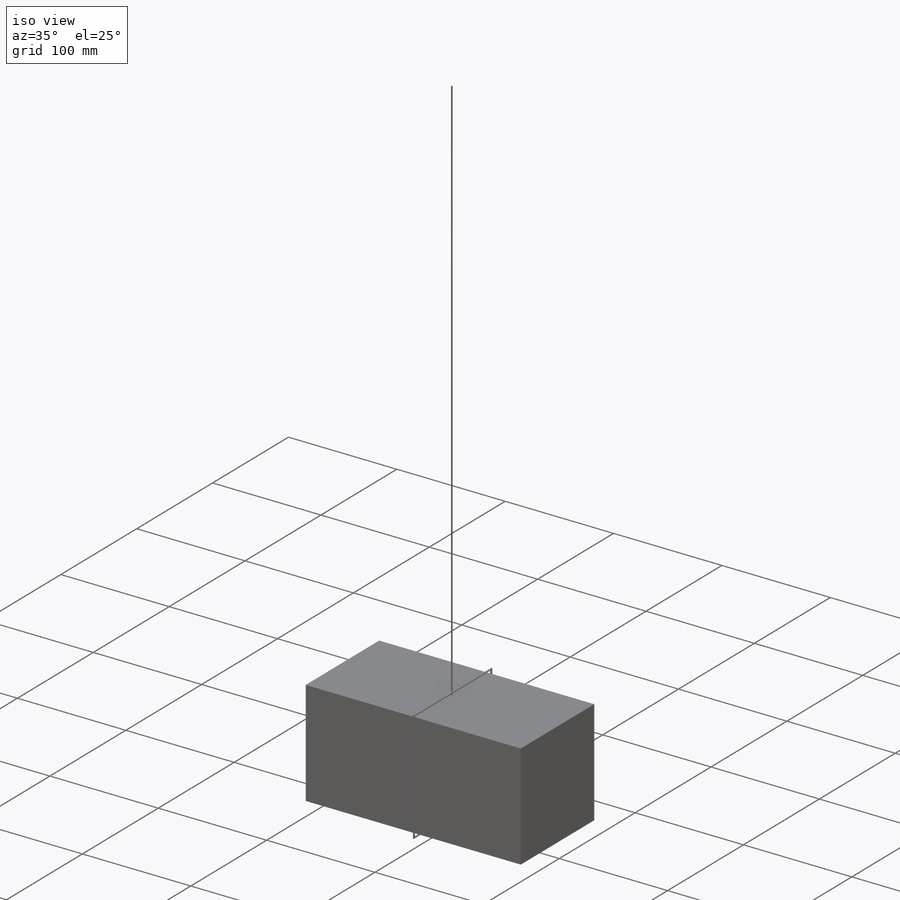
[diagram: iso view]
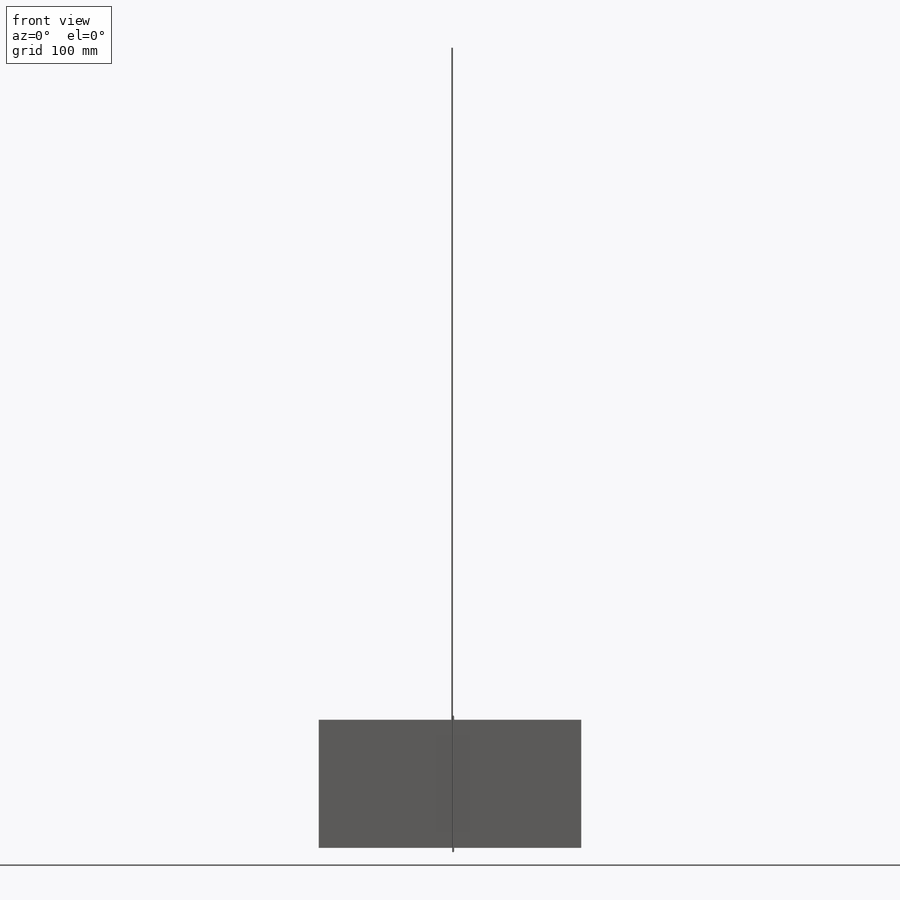
[diagram: front view]
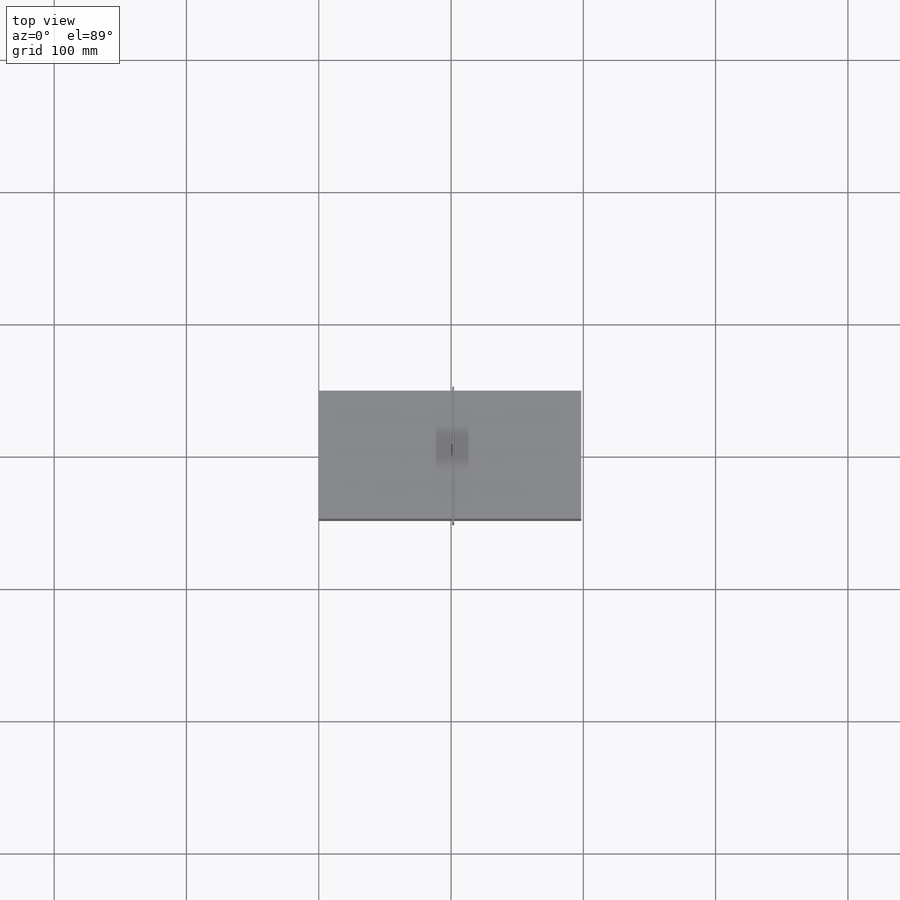
[diagram: top view]
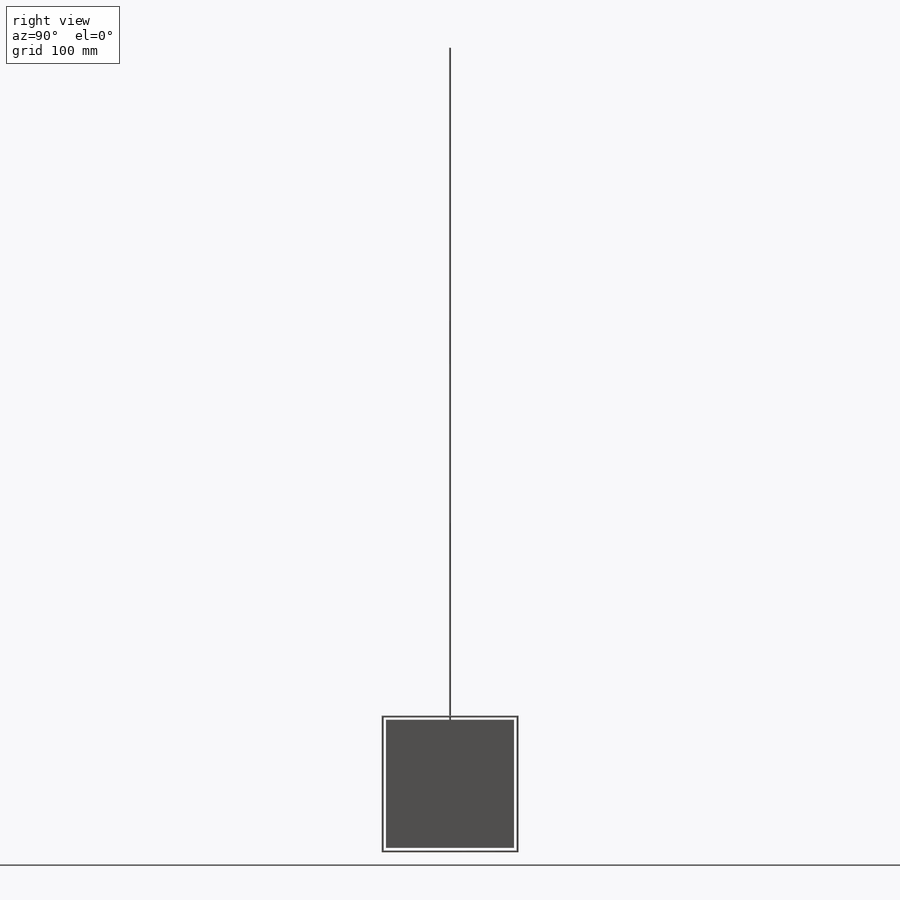
[diagram: right view]
SOLIDWORKS PART (.sldprt)
format: sldprt  version: not decoded by parser v0  size: 174,592 bytes
history: native  units: mm
features: sketch x4, extrude x2, material x1, plane x1, sweep x1 (+12 scaffold rows collapsed)
feature tree (21):
  scaffold x12  (default folders/planes/origin — collapsed)
  material  "Material <não especificado>"
  sketch  "Sketch1"  dims[D1=198.4375mm D2=96.8375mm]
  extrude  "Extrude1"  Depth=96.8375mm
  plane  "Plano1"  Offset=101.6mm
  sketch  "Esboço1"  dims[D1=2.54mm D2=2.54mm D3=2.54mm]
  sketch  "Esboço2"
  sweep  "Varredura1"
  sketch  "Esboço3"  dims[D1=1.27mm]
  extrude  "Ressalto-extrusão1"  Depth=508mm
decode coverage: 5 of 7 modeling features carry decoded parameters
note: suppression state not decoded; provenance and decode notes live in map.json
